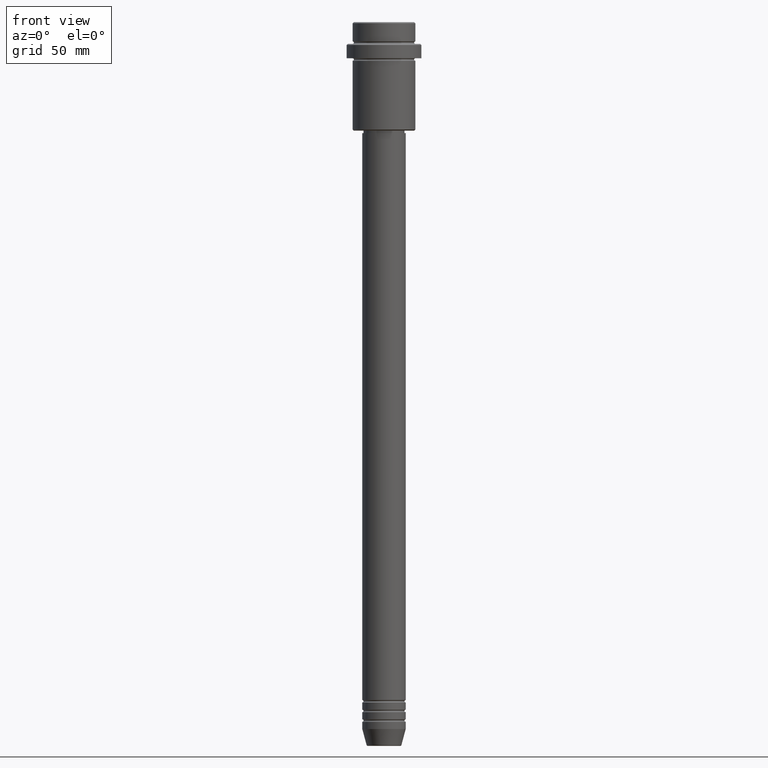
[diagram: clean part render]
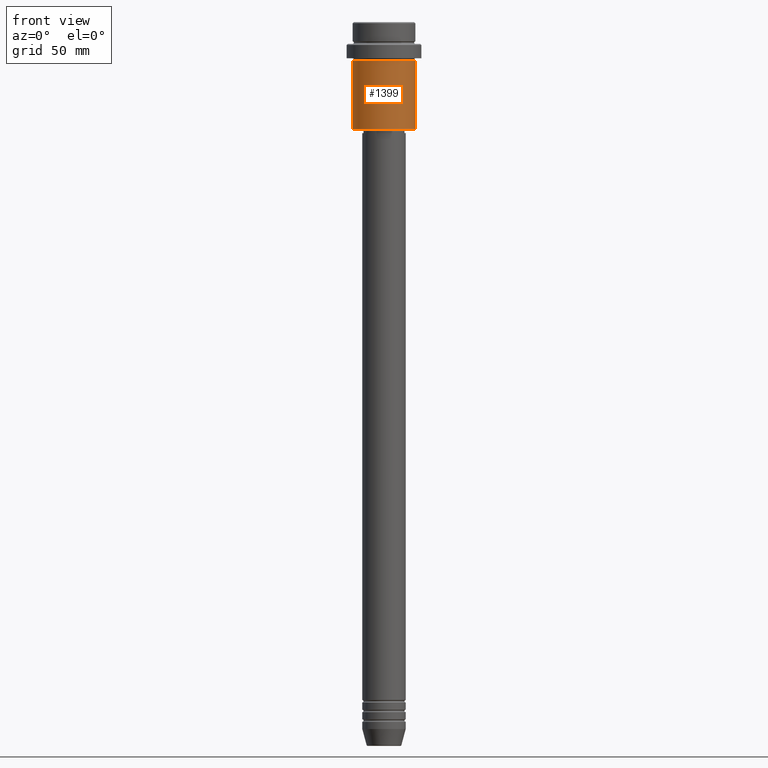
[diagram: same view with one face highlighted and labeled with its STEP entity id]
A machine part, front view. The second image highlights one B-rep face of the part: STEP entity #1399.
In plain terms, the highlighted cylindrical surface (edge-blend (fillet) strip) has radius 13 mm, axis along (-0, -0, 1).
Its self-contained STEP definition (entity closure, byte-faithful):
#16 = CARTESIAN_POINT ( 'NONE',  ( -13.00000000000000000, 1.592040838891559095E-15, -16.00000000000000000 ) ) ;
#28 = EDGE_CURVE ( 'NONE', #1379, #694, #1183, .T. ) ;
#35 = DIRECTION ( 'NONE',  ( -0.000000000000000000, -0.000000000000000000, 1.000000000000000000 ) ) ;
#101 = ORIENTED_EDGE ( 'NONE', *, *, #1329, .T. ) ;
#142 = CARTESIAN_POINT ( 'NONE',  ( 0.000000000000000000, 0.000000000000000000, -16.00000000000000000 ) ) ;
#172 = EDGE_CURVE ( 'NONE', #365, #694, #1287, .T. ) ;
#233 = CARTESIAN_POINT ( 'NONE',  ( 0.000000000000000000, 0.000000000000000000, 0.000000000000000000 ) ) ;
#238 = CIRCLE ( 'NONE', #761, 13.00000000000000000 ) ;
#242 = DIRECTION ( 'NONE',  ( -0.000000000000000000, -0.000000000000000000, 1.000000000000000000 ) ) ;
#247 = FACE_OUTER_BOUND ( 'NONE', #293, .T. ) ;
#293 = EDGE_LOOP ( 'NONE', ( #1325, #101, #759, #1063 ) ) ;
#299 = VERTEX_POINT ( 'NONE', #1392 ) ;
#365 = VERTEX_POINT ( 'NONE', #16 ) ;
#480 = DIRECTION ( 'NONE',  ( 1.000000000000000000, 0.000000000000000000, 0.000000000000000000 ) ) ;
#506 = DIRECTION ( 'NONE',  ( -0.000000000000000000, -0.000000000000000000, 1.000000000000000000 ) ) ;
#512 = VECTOR ( 'NONE', #506, 1000.000000000000000 ) ;
#523 = EDGE_CURVE ( 'NONE', #299, #365, #815, .T. ) ;
#539 = CARTESIAN_POINT ( 'NONE',  ( 13.00000000000000000, 0.000000000000000000, -16.00000000000000000 ) ) ;
#668 = DIRECTION ( 'NONE',  ( 1.000000000000000000, 0.000000000000000000, 0.000000000000000000 ) ) ;
#675 = CARTESIAN_POINT ( 'NONE',  ( 0.000000000000000000, 0.000000000000000000, -44.50000000000002842 ) ) ;
#680 = DIRECTION ( 'NONE',  ( -1.000000000000000000, 0.000000000000000000, 0.000000000000000000 ) ) ;
#686 = DIRECTION ( 'NONE',  ( -0.000000000000000000, -0.000000000000000000, 1.000000000000000000 ) ) ;
#694 = VERTEX_POINT ( 'NONE', #539 ) ;
#732 = CARTESIAN_POINT ( 'NONE',  ( 13.00000000000000000, 0.000000000000000000, 0.000000000000000000 ) ) ;
#759 = ORIENTED_EDGE ( 'NONE', *, *, #28, .T. ) ;
#761 = AXIS2_PLACEMENT_3D ( 'NONE', #675, #242, #680 ) ;
#815 = LINE ( 'NONE', #1028, #512 ) ;
#888 = CYLINDRICAL_SURFACE ( 'NONE', #1200, 13.00000000000000000 ) ;
#897 = CARTESIAN_POINT ( 'NONE',  ( 13.00000000000000000, 0.000000000000000000, -44.50000000000002842 ) ) ;
#1028 = CARTESIAN_POINT ( 'NONE',  ( -13.00000000000000000, 1.592040838891559095E-15, 0.000000000000000000 ) ) ;
#1051 = DIRECTION ( 'NONE',  ( -0.000000000000000000, -0.000000000000000000, 1.000000000000000000 ) ) ;
#1063 = ORIENTED_EDGE ( 'NONE', *, *, #172, .F. ) ;
#1170 = VECTOR ( 'NONE', #1051, 1000.000000000000000 ) ;
#1183 = LINE ( 'NONE', #732, #1170 ) ;
#1200 = AXIS2_PLACEMENT_3D ( 'NONE', #233, #686, #668 ) ;
#1263 = AXIS2_PLACEMENT_3D ( 'NONE', #142, #35, #480 ) ;
#1287 = CIRCLE ( 'NONE', #1263, 13.00000000000000000 ) ;
#1325 = ORIENTED_EDGE ( 'NONE', *, *, #523, .F. ) ;
#1329 = EDGE_CURVE ( 'NONE', #299, #1379, #238, .T. ) ;
#1379 = VERTEX_POINT ( 'NONE', #897 ) ;
#1392 = CARTESIAN_POINT ( 'NONE',  ( -13.00000000000000000, 1.592040838891559095E-15, -44.50000000000002842 ) ) ;
#1399 = ADVANCED_FACE ( 'NONE', ( #247 ), #888, .T. ) ;